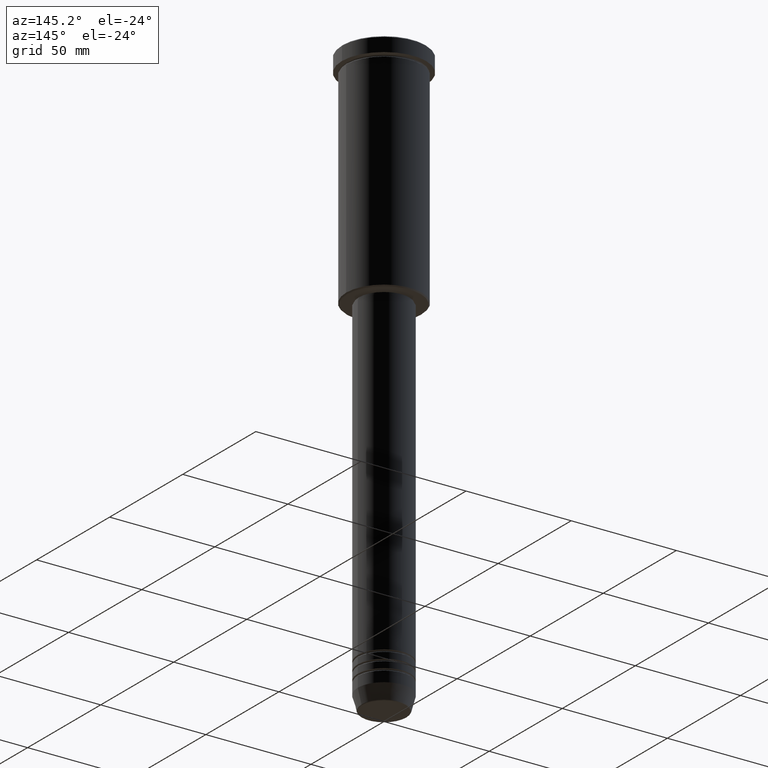
[diagram: clean part render]
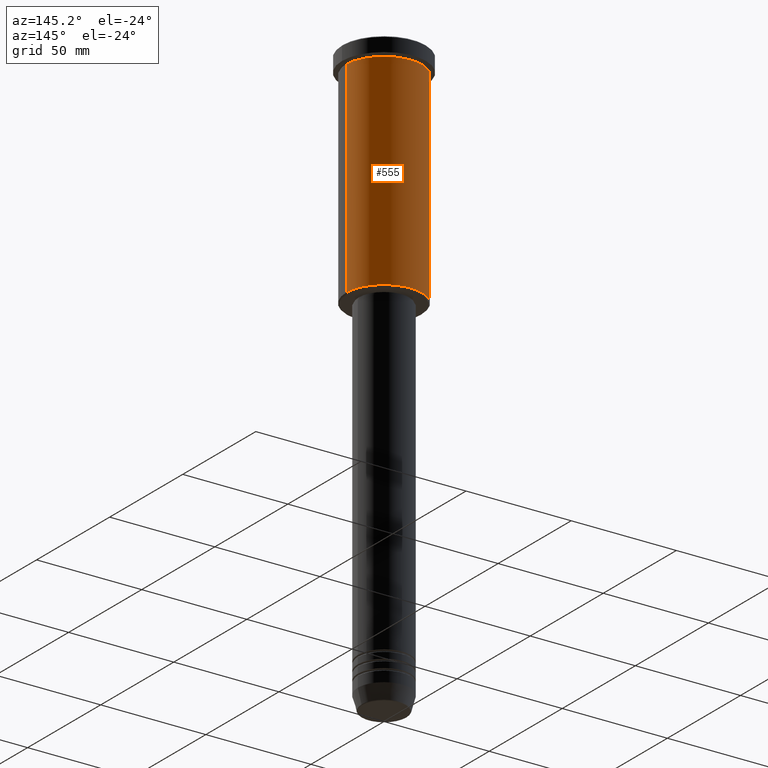
[diagram: same view with one face highlighted and labeled with its STEP entity id]
A machine part, auxiliary view. The second image highlights one B-rep face of the part: STEP entity #555.
In plain terms, the highlighted cylindrical surface (partial cylindrical patch) has radius 18 mm, axis along (-0, -0, 1).
Its self-contained STEP definition (entity closure, byte-faithful):
#76 = CARTESIAN_POINT ( 'NONE',  ( 0.000000000000000000, 0.000000000000000000, -7.999999999999996447 ) ) ;
#98 = DIRECTION ( 'NONE',  ( 1.000000000000000000, 0.000000000000000000, 0.000000000000000000 ) ) ;
#110 = CARTESIAN_POINT ( 'NONE',  ( 18.00000000000000000, 0.000000000000000000, -7.999999999999996447 ) ) ;
#113 = AXIS2_PLACEMENT_3D ( 'NONE', #1084, #266, #1158 ) ;
#166 = CIRCLE ( 'NONE', #873, 18.00000000000000000 ) ;
#184 = CARTESIAN_POINT ( 'NONE',  ( -18.00000000000000000, 2.204364238465235428E-15, 0.000000000000000000 ) ) ;
#201 = EDGE_CURVE ( 'NONE', #1133, #833, #203, .T. ) ;
#203 = CIRCLE ( 'NONE', #113, 18.00000000000000000 ) ;
#205 = ORIENTED_EDGE ( 'NONE', *, *, #201, .T. ) ;
#215 = ORIENTED_EDGE ( 'NONE', *, *, #1037, .F. ) ;
#219 = ORIENTED_EDGE ( 'NONE', *, *, #425, .F. ) ;
#220 = DIRECTION ( 'NONE',  ( 1.000000000000000000, 0.000000000000000000, 0.000000000000000000 ) ) ;
#225 = VECTOR ( 'NONE', #531, 1000.000000000000000 ) ;
#226 = CYLINDRICAL_SURFACE ( 'NONE', #732, 18.00000000000000000 ) ;
#262 = DIRECTION ( 'NONE',  ( -0.000000000000000000, -0.000000000000000000, 1.000000000000000000 ) ) ;
#266 = DIRECTION ( 'NONE',  ( -0.000000000000000000, -0.000000000000000000, 1.000000000000000000 ) ) ;
#275 = LINE ( 'NONE', #184, #225 ) ;
#366 = VERTEX_POINT ( 'NONE', #110 ) ;
#385 = CARTESIAN_POINT ( 'NONE',  ( -18.00000000000000000, 2.204364238465235428E-15, -7.999999999999996447 ) ) ;
#425 = EDGE_CURVE ( 'NONE', #1133, #366, #840, .T. ) ;
#442 = VERTEX_POINT ( 'NONE', #385 ) ;
#463 = CARTESIAN_POINT ( 'NONE',  ( 18.00000000000000000, 0.000000000000000000, -105.4999999999999432 ) ) ;
#531 = DIRECTION ( 'NONE',  ( -0.000000000000000000, -0.000000000000000000, 1.000000000000000000 ) ) ;
#555 = ADVANCED_FACE ( 'NONE', ( #755 ), #226, .T. ) ;
#625 = DIRECTION ( 'NONE',  ( -0.000000000000000000, -0.000000000000000000, 1.000000000000000000 ) ) ;
#732 = AXIS2_PLACEMENT_3D ( 'NONE', #862, #1040, #220 ) ;
#755 = FACE_OUTER_BOUND ( 'NONE', #770, .T. ) ;
#770 = EDGE_LOOP ( 'NONE', ( #205, #934, #215, #219 ) ) ;
#823 = CARTESIAN_POINT ( 'NONE',  ( 18.00000000000000000, 0.000000000000000000, 0.000000000000000000 ) ) ;
#833 = VERTEX_POINT ( 'NONE', #902 ) ;
#840 = LINE ( 'NONE', #823, #1171 ) ;
#862 = CARTESIAN_POINT ( 'NONE',  ( 0.000000000000000000, 0.000000000000000000, 0.000000000000000000 ) ) ;
#873 = AXIS2_PLACEMENT_3D ( 'NONE', #76, #262, #98 ) ;
#902 = CARTESIAN_POINT ( 'NONE',  ( -18.00000000000000000, 2.204364238465235428E-15, -105.4999999999999432 ) ) ;
#934 = ORIENTED_EDGE ( 'NONE', *, *, #1069, .T. ) ;
#1037 = EDGE_CURVE ( 'NONE', #366, #442, #166, .T. ) ;
#1040 = DIRECTION ( 'NONE',  ( -0.000000000000000000, -0.000000000000000000, 1.000000000000000000 ) ) ;
#1069 = EDGE_CURVE ( 'NONE', #833, #442, #275, .T. ) ;
#1084 = CARTESIAN_POINT ( 'NONE',  ( 0.000000000000000000, 0.000000000000000000, -105.4999999999999432 ) ) ;
#1133 = VERTEX_POINT ( 'NONE', #463 ) ;
#1158 = DIRECTION ( 'NONE',  ( -1.000000000000000000, 0.000000000000000000, 0.000000000000000000 ) ) ;
#1171 = VECTOR ( 'NONE', #625, 1000.000000000000000 ) ;